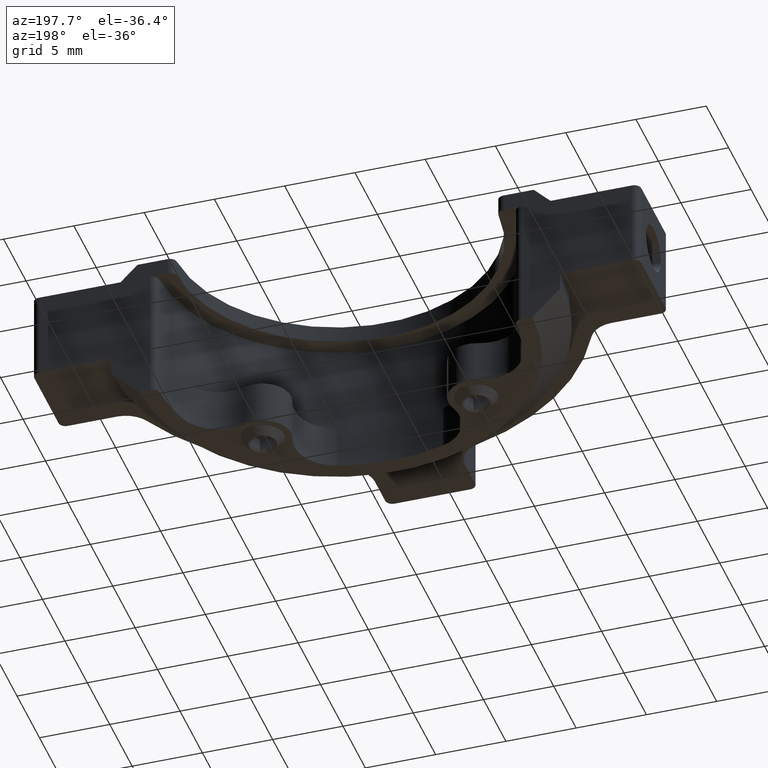
[diagram: clean part render]
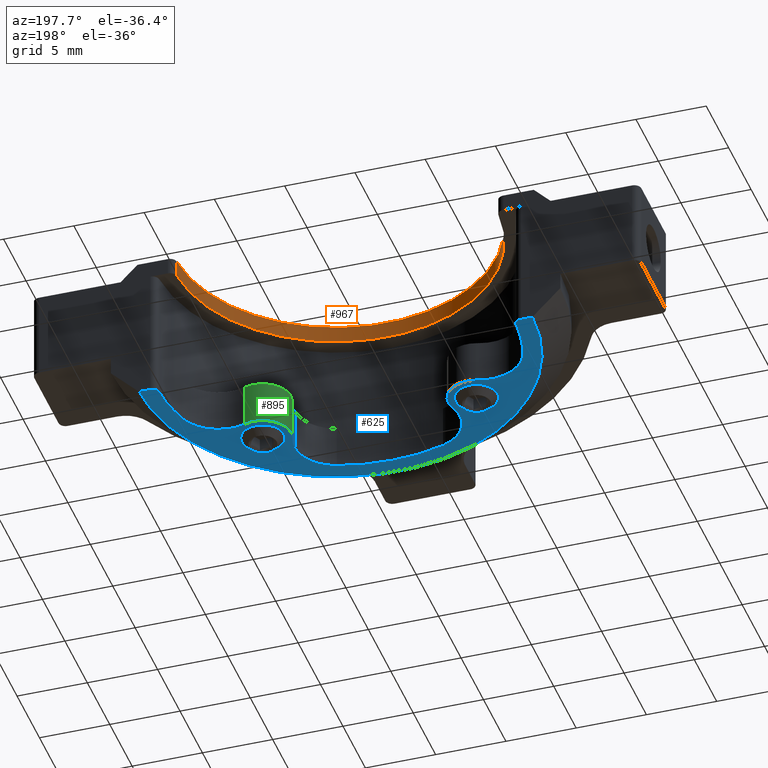
[diagram: same view with three faces highlighted in distinct colors, each labeled with its STEP entity id]
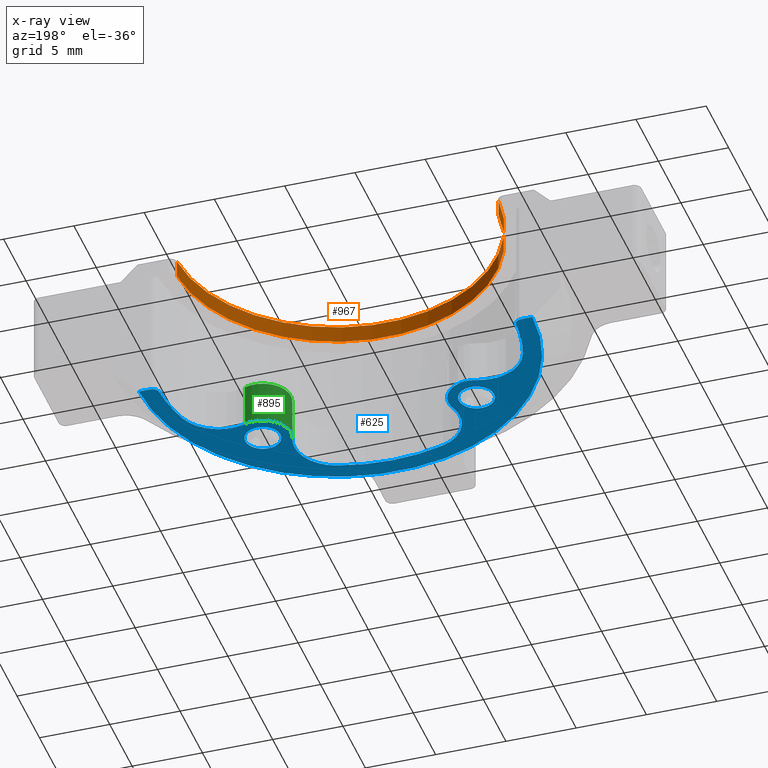
[diagram: x-ray of the same camera — body ghosted, the three highlighted faces saturated]
A machine part, auxiliary view with three faces highlighted in distinct colors.
The next image is the same camera in x-ray (body ghosted, the three faces saturated) — at least one of them is partly hidden behind the body in this view.
Their STEP definitions:

[orange] entity #967 — the highlighted cylindrical surface (partial cylindrical patch) has radius 11.45 mm, axis along (-0, -0, 1).
#158 = VERTEX_POINT ( 'NONE', #2310 ) ;
#218 = ORIENTED_EDGE ( 'NONE', *, *, #2672, .T. ) ;
#305 = DIRECTION ( 'NONE',  ( 1.000000000000000000, 0.000000000000000000, 0.000000000000000000 ) ) ;
#377 = VECTOR ( 'NONE', #2546, 1000.000000000000000 ) ;
#484 = DIRECTION ( 'NONE',  ( -0.000000000000000000, 0.000000000000000000, 1.000000000000000000 ) ) ;
#494 = DIRECTION ( 'NONE',  ( -0.000000000000000000, -0.000000000000000000, -1.000000000000000000 ) ) ;
#626 = VERTEX_POINT ( 'NONE', #1872 ) ;
#657 = DIRECTION ( 'NONE',  ( -0.000000000000000000, -0.000000000000000000, 1.000000000000000000 ) ) ;
#821 = EDGE_LOOP ( 'NONE', ( #889, #843, #2285, #218 ) ) ;
#822 = DIRECTION ( 'NONE',  ( 0.000000000000000000, 0.000000000000000000, -1.000000000000000000 ) ) ;
#828 = VERTEX_POINT ( 'NONE', #1001 ) ;
#843 = ORIENTED_EDGE ( 'NONE', *, *, #2188, .T. ) ;
#889 = ORIENTED_EDGE ( 'NONE', *, *, #2827, .T. ) ;
#906 = AXIS2_PLACEMENT_3D ( 'NONE', #3115, #494, #305 ) ;
#967 = ADVANCED_FACE ( 'NONE', ( #1366 ), #2820, .F. ) ;
#1001 = CARTESIAN_POINT ( 'NONE',  ( -13.35645273693320334, 8.509741874139219675, 34.55000000000000426 ) ) ;
#1010 = VECTOR ( 'NONE', #822, 1000.000000000000000 ) ;
#1165 = DIRECTION ( 'NONE',  ( 1.000000000000000000, 0.000000000000000000, 0.000000000000000000 ) ) ;
#1306 = LINE ( 'NONE', #2966, #1010 ) ;
#1366 = FACE_OUTER_BOUND ( 'NONE', #821, .T. ) ;
#1442 = CARTESIAN_POINT ( 'NONE',  ( -1.916479710973556516, 8.988821372047169689, 34.55000000000000426 ) ) ;
#1585 = CARTESIAN_POINT ( 'NONE',  ( -13.35645273693320334, 8.509741874139219675, 26.95000000000000284 ) ) ;
#1709 = CIRCLE ( 'NONE', #906, 11.45000000000000107 ) ;
#1807 = AXIS2_PLACEMENT_3D ( 'NONE', #1442, #484, #1165 ) ;
#1872 = CARTESIAN_POINT ( 'NONE',  ( -13.35645273693320334, 8.509741874139219675, 33.35000000000000142 ) ) ;
#1878 = DIRECTION ( 'NONE',  ( 1.000000000000000000, 0.000000000000000000, 0.000000000000000000 ) ) ;
#2042 = AXIS2_PLACEMENT_3D ( 'NONE', #2059, #657, #1878 ) ;
#2059 = CARTESIAN_POINT ( 'NONE',  ( -1.916479710973556516, 8.988821372047169689, 26.95000000000000284 ) ) ;
#2188 = EDGE_CURVE ( 'NONE', #158, #2664, #1306, .T. ) ;
#2285 = ORIENTED_EDGE ( 'NONE', *, *, #2287, .T. ) ;
#2287 = EDGE_CURVE ( 'NONE', #2664, #626, #1709, .T. ) ;
#2310 = CARTESIAN_POINT ( 'NONE',  ( 9.523493314986090752, 8.509741874139219675, 34.55000000000000426 ) ) ;
#2546 = DIRECTION ( 'NONE',  ( -0.000000000000000000, -0.000000000000000000, 1.000000000000000000 ) ) ;
#2664 = VERTEX_POINT ( 'NONE', #2835 ) ;
#2672 = EDGE_CURVE ( 'NONE', #626, #828, #2818, .T. ) ;
#2818 = LINE ( 'NONE', #1585, #377 ) ;
#2820 = CYLINDRICAL_SURFACE ( 'NONE', #2042, 11.45000000000000107 ) ;
#2822 = CIRCLE ( 'NONE', #1807, 11.45000000000000107 ) ;
#2827 = EDGE_CURVE ( 'NONE', #828, #158, #2822, .T. ) ;
#2835 = CARTESIAN_POINT ( 'NONE',  ( 9.523493314986090752, 8.509741874139219675, 33.35000000000000142 ) ) ;
#2966 = CARTESIAN_POINT ( 'NONE',  ( 9.523493314986090752, 8.509741874139219675, 26.95000000000000284 ) ) ;
#3115 = CARTESIAN_POINT ( 'NONE',  ( -1.916479710973556516, 8.988821372047169689, 33.35000000000000142 ) ) ;

[blue] entity #625 — the highlighted planar face has unit normal (-0, 0, 1).
#23 = DIRECTION ( 'NONE',  ( -0.000000000000000000, 0.000000000000000000, 1.000000000000000000 ) ) ;
#41 = CIRCLE ( 'NONE', #2853, 3.000000000000000444 ) ;
#43 = CIRCLE ( 'NONE', #245, 12.69999999999999929 ) ;
#50 = CARTESIAN_POINT ( 'NONE',  ( -9.517877608728953831, 1.387423474291795911, 23.85000000000000142 ) ) ;
#52 = CARTESIAN_POINT ( 'NONE',  ( -11.17755057159709864, 6.103935496573145159, 23.85000000000000142 ) ) ;
#57 = CARTESIAN_POINT ( 'NONE',  ( 0.9684061645004985452, -0.2722494885763647177, 23.85000000000000142 ) ) ;
#58 = EDGE_CURVE ( 'NONE', #2474, #592, #931, .T. ) ;
#119 = DIRECTION ( 'NONE',  ( -1.000000000000000000, 0.000000000000000000, 0.000000000000000000 ) ) ;
#135 = EDGE_CURVE ( 'NONE', #522, #2623, #1588, .T. ) ;
#147 = AXIS2_PLACEMENT_3D ( 'NONE', #1395, #3076, #2323 ) ;
#154 = CARTESIAN_POINT ( 'NONE',  ( 11.27404719283129175, 8.988821372047167912, 23.85000000000000142 ) ) ;
#166 = CIRCLE ( 'NONE', #379, 3.000000000000000888 ) ;
#199 = DIRECTION ( 'NONE',  ( 0.000000000000000000, -0.000000000000000000, -1.000000000000000000 ) ) ;
#214 = DIRECTION ( 'NONE',  ( 1.000000000000000000, 0.000000000000000000, 0.000000000000000000 ) ) ;
#227 = DIRECTION ( 'NONE',  ( -1.000000000000000000, 0.000000000000000000, 0.000000000000000000 ) ) ;
#245 = AXIS2_PLACEMENT_3D ( 'NONE', #2785, #199, #1601 ) ;
#250 = DIRECTION ( 'NONE',  ( 1.000000000000000000, 0.000000000000000000, 0.000000000000000000 ) ) ;
#280 = ORIENTED_EDGE ( 'NONE', *, *, #2878, .F. ) ;
#287 = ORIENTED_EDGE ( 'NONE', *, *, #3118, .T. ) ;
#315 = ORIENTED_EDGE ( 'NONE', *, *, #1928, .F. ) ;
#341 = DIRECTION ( 'NONE',  ( 1.000000000000000000, 0.000000000000000000, 0.000000000000000000 ) ) ;
#379 = AXIS2_PLACEMENT_3D ( 'NONE', #52, #780, #2986 ) ;
#384 = CARTESIAN_POINT ( 'NONE',  ( 3.798313377869302787, 0.7235542891445320146, 23.85000000000000142 ) ) ;
#396 = CARTESIAN_POINT ( 'NONE',  ( -23.51647971097355949, 8.988821372047167912, 23.85000000000000142 ) ) ;
#405 = CARTESIAN_POINT ( 'NONE',  ( -15.10700661477842210, 8.488821372047167912, 23.85000000000000142 ) ) ;
#421 = CIRCLE ( 'NONE', #665, 0.5000000000000004441 ) ;
#425 = AXIS2_PLACEMENT_3D ( 'NONE', #2681, #2192, #1429 ) ;
#429 = DIRECTION ( 'NONE',  ( 0.000000000000000000, -0.000000000000000000, -1.000000000000000000 ) ) ;
#473 = CIRCLE ( 'NONE', #1163, 12.69999999999999929 ) ;
#491 = EDGE_CURVE ( 'NONE', #2316, #1206, #2962, .T. ) ;
#498 = AXIS2_PLACEMENT_3D ( 'NONE', #1608, #2597, #917 ) ;
#501 = DIRECTION ( 'NONE',  ( 1.000000000000000000, 0.000000000000000000, 0.000000000000000000 ) ) ;
#522 = VERTEX_POINT ( 'NONE', #1287 ) ;
#565 = DIRECTION ( 'NONE',  ( -1.000000000000000000, -0.000000000000000000, -0.000000000000000000 ) ) ;
#573 = CIRCLE ( 'NONE', #770, 1.249999999999989786 ) ;
#583 = EDGE_CURVE ( 'NONE', #1400, #2729, #1141, .T. ) ;
#592 = VERTEX_POINT ( 'NONE', #154 ) ;
#625 = ADVANCED_FACE ( 'NONE', ( #1592, #661, #644 ), #2110, .F. ) ;
#628 = CARTESIAN_POINT ( 'NONE',  ( -10.18174679387621140, 3.274028283204335477, 23.85000000000000142 ) ) ;
#644 = FACE_OUTER_BOUND ( 'NONE', #1529, .T. ) ;
#661 = FACE_BOUND ( 'NONE', #2600, .T. ) ;
#665 = AXIS2_PLACEMENT_3D ( 'NONE', #405, #1344, #1566 ) ;
#680 = VERTEX_POINT ( 'NONE', #2578 ) ;
#712 = VECTOR ( 'NONE', #1120, 1000.000000000000000 ) ;
#728 = EDGE_CURVE ( 'NONE', #1792, #1294, #2447, .T. ) ;
#733 = ORIENTED_EDGE ( 'NONE', *, *, #583, .F. ) ;
#742 = CIRCLE ( 'NONE', #1536, 1.249999999999988898 ) ;
#770 = AXIS2_PLACEMENT_3D ( 'NONE', #1492, #1509, #119 ) ;
#775 = ORIENTED_EDGE ( 'NONE', *, *, #778, .T. ) ;
#778 = EDGE_CURVE ( 'NONE', #1698, #1066, #41, .T. ) ;
#780 = DIRECTION ( 'NONE',  ( -0.000000000000000000, 0.000000000000000000, 1.000000000000000000 ) ) ;
#785 = CARTESIAN_POINT ( 'NONE',  ( -4.801365586447608358, -0.2722494885763655503, 23.85000000000000142 ) ) ;
#829 = EDGE_CURVE ( 'NONE', #1792, #1400, #2643, .T. ) ;
#838 = VERTEX_POINT ( 'NONE', #1929 ) ;
#917 = DIRECTION ( 'NONE',  ( 1.000000000000000000, 0.000000000000000000, 0.000000000000000000 ) ) ;
#923 = ORIENTED_EDGE ( 'NONE', *, *, #1276, .T. ) ;
#931 = CIRCLE ( 'NONE', #147, 0.5000000000000004441 ) ;
#946 = ORIENTED_EDGE ( 'NONE', *, *, #1356, .T. ) ;
#964 = ORIENTED_EDGE ( 'NONE', *, *, #1274, .F. ) ;
#980 = ORIENTED_EDGE ( 'NONE', *, *, #2964, .T. ) ;
#1028 = LINE ( 'NONE', #1292, #1391 ) ;
#1039 = EDGE_CURVE ( 'NONE', #1820, #2854, #1052, .T. ) ;
#1052 = CIRCLE ( 'NONE', #1790, 12.69999999999999929 ) ;
#1066 = VERTEX_POINT ( 'NONE', #1397 ) ;
#1110 = CARTESIAN_POINT ( 'NONE',  ( 1.860638909492473125, -3.136498208356836237, 23.85000000000000142 ) ) ;
#1120 = DIRECTION ( 'NONE',  ( -1.000000000000000000, -0.000000000000000000, -0.000000000000000000 ) ) ;
#1141 = CIRCLE ( 'NONE', #1432, 2.000000000000001776 ) ;
#1155 = CARTESIAN_POINT ( 'NONE',  ( -14.04179929137757554, 5.211702751581181126, 23.85000000000000142 ) ) ;
#1157 = ORIENTED_EDGE ( 'NONE', *, *, #3024, .F. ) ;
#1161 = ORIENTED_EDGE ( 'NONE', *, *, #58, .T. ) ;
#1163 = AXIS2_PLACEMENT_3D ( 'NONE', #2385, #2130, #501 ) ;
#1167 = VERTEX_POINT ( 'NONE', #2605 ) ;
#1204 = CARTESIAN_POINT ( 'NONE',  ( 10.20883986943046295, 5.211702751581182902, 23.85000000000000142 ) ) ;
#1206 = VERTEX_POINT ( 'NONE', #1246 ) ;
#1222 = CARTESIAN_POINT ( 'NONE',  ( -7.517877608728952055, 1.387423474291795911, 23.85000000000000142 ) ) ;
#1225 = DIRECTION ( 'NONE',  ( -0.000000000000000000, -0.000000000000000000, -1.000000000000000000 ) ) ;
#1246 = CARTESIAN_POINT ( 'NONE',  ( 4.434918186781851901, 1.387423474291797687, 23.85000000000000142 ) ) ;
#1258 = CARTESIAN_POINT ( 'NONE',  ( -9.517877608728953831, 1.387423474291795911, 23.85000000000000142 ) ) ;
#1274 = EDGE_CURVE ( 'NONE', #2480, #592, #1028, .T. ) ;
#1276 = EDGE_CURVE ( 'NONE', #1066, #2623, #2649, .T. ) ;
#1287 = CARTESIAN_POINT ( 'NONE',  ( 6.348787371929100587, 3.274028283204339029, 23.85000000000000142 ) ) ;
#1292 = CARTESIAN_POINT ( 'NONE',  ( -23.51647971097355949, 8.988821372047167912, 23.85000000000000142 ) ) ;
#1294 = VERTEX_POINT ( 'NONE', #2097 ) ;
#1313 = CIRCLE ( 'NONE', #2718, 1.249999999999988898 ) ;
#1344 = DIRECTION ( 'NONE',  ( 0.000000000000000000, -0.000000000000000000, -1.000000000000000000 ) ) ;
#1356 = EDGE_CURVE ( 'NONE', #522, #1382, #2849, .T. ) ;
#1368 = ORIENTED_EDGE ( 'NONE', *, *, #728, .T. ) ;
#1380 = CARTESIAN_POINT ( 'NONE',  ( -1.916479710973556516, 8.988821372047167912, 23.85000000000000142 ) ) ;
#1382 = VERTEX_POINT ( 'NONE', #1204 ) ;
#1390 = CARTESIAN_POINT ( 'NONE',  ( 7.344591149649987827, 6.103935496573146935, 23.85000000000000142 ) ) ;
#1391 = VECTOR ( 'NONE', #565, 1000.000000000000000 ) ;
#1395 = CARTESIAN_POINT ( 'NONE',  ( 11.27404719283130952, 8.488821372047167912, 23.85000000000000142 ) ) ;
#1397 = CARTESIAN_POINT ( 'NONE',  ( 3.968406164500498878, -0.2722494885763647177, 23.85000000000000142 ) ) ;
#1400 = VERTEX_POINT ( 'NONE', #1222 ) ;
#1408 = DIRECTION ( 'NONE',  ( -0.000000000000000000, -0.000000000000000000, -1.000000000000000000 ) ) ;
#1416 = ORIENTED_EDGE ( 'NONE', *, *, #135, .F. ) ;
#1429 = DIRECTION ( 'NONE',  ( 1.000000000000000000, 0.000000000000000000, 0.000000000000000000 ) ) ;
#1432 = AXIS2_PLACEMENT_3D ( 'NONE', #1258, #2686, #341 ) ;
#1489 = AXIS2_PLACEMENT_3D ( 'NONE', #1649, #1894, #214 ) ;
#1492 = CARTESIAN_POINT ( 'NONE',  ( 5.684918186781841243, 1.387423474291797687, 23.85000000000000142 ) ) ;
#1509 = DIRECTION ( 'NONE',  ( -0.000000000000000000, -0.000000000000000000, -1.000000000000000000 ) ) ;
#1511 = DIRECTION ( 'NONE',  ( -0.000000000000000000, 0.000000000000000000, 1.000000000000000000 ) ) ;
#1521 = DIRECTION ( 'NONE',  ( -0.000000000000000000, -0.000000000000000000, -1.000000000000000000 ) ) ;
#1529 = EDGE_LOOP ( 'NONE', ( #315, #1161, #964, #287, #2781, #1667, #3096, #980, #733, #2022, #1368, #280, #775, #923, #1416, #946 ) ) ;
#1536 = AXIS2_PLACEMENT_3D ( 'NONE', #2698, #1521, #2477 ) ;
#1566 = DIRECTION ( 'NONE',  ( 1.000000000000000000, 0.000000000000000000, 0.000000000000000000 ) ) ;
#1588 = CIRCLE ( 'NONE', #1489, 2.000000000000002665 ) ;
#1592 = FACE_BOUND ( 'NONE', #2205, .T. ) ;
#1601 = DIRECTION ( 'NONE',  ( 1.000000000000000000, 0.000000000000000000, 0.000000000000000000 ) ) ;
#1602 = LINE ( 'NONE', #396, #712 ) ;
#1607 = CARTESIAN_POINT ( 'NONE',  ( 12.08352028902641706, 8.988821372047167912, 23.85000000000000142 ) ) ;
#1608 = CARTESIAN_POINT ( 'NONE',  ( -1.916479710973556516, -1.811178627952831688, 23.85000000000000142 ) ) ;
#1611 = EDGE_CURVE ( 'NONE', #680, #838, #742, .T. ) ;
#1640 = AXIS2_PLACEMENT_3D ( 'NONE', #2601, #1408, #227 ) ;
#1649 = CARTESIAN_POINT ( 'NONE',  ( 5.684918186781841243, 1.387423474291797687, 23.85000000000000142 ) ) ;
#1667 = ORIENTED_EDGE ( 'NONE', *, *, #2208, .T. ) ;
#1673 = DIRECTION ( 'NONE',  ( -0.000000000000000000, 0.000000000000000000, 1.000000000000000000 ) ) ;
#1687 = CARTESIAN_POINT ( 'NONE',  ( -15.10700661477842566, 8.988821372047167912, 23.85000000000000142 ) ) ;
#1698 = VERTEX_POINT ( 'NONE', #1110 ) ;
#1733 = DIRECTION ( 'NONE',  ( -0.000000000000000000, 0.000000000000000000, 1.000000000000000000 ) ) ;
#1761 = CIRCLE ( 'NONE', #425, 13.99999999999998401 ) ;
#1790 = AXIS2_PLACEMENT_3D ( 'NONE', #1380, #429, #1867 ) ;
#1792 = VERTEX_POINT ( 'NONE', #2139 ) ;
#1820 = VERTEX_POINT ( 'NONE', #1155 ) ;
#1840 = AXIS2_PLACEMENT_3D ( 'NONE', #2969, #1511, #2736 ) ;
#1867 = DIRECTION ( 'NONE',  ( 1.000000000000000000, 0.000000000000000000, 0.000000000000000000 ) ) ;
#1894 = DIRECTION ( 'NONE',  ( -0.000000000000000000, 0.000000000000000000, 1.000000000000000000 ) ) ;
#1928 = EDGE_CURVE ( 'NONE', #2474, #1382, #43, .T. ) ;
#1929 = CARTESIAN_POINT ( 'NONE',  ( -10.76787760872894317, 1.387423474291795911, 23.85000000000000142 ) ) ;
#1949 = DIRECTION ( 'NONE',  ( -0.000000000000000000, 0.000000000000000000, 1.000000000000000000 ) ) ;
#1998 = AXIS2_PLACEMENT_3D ( 'NONE', #2392, #1949, #250 ) ;
#2022 = ORIENTED_EDGE ( 'NONE', *, *, #829, .F. ) ;
#2091 = ORIENTED_EDGE ( 'NONE', *, *, #2100, .F. ) ;
#2097 = CARTESIAN_POINT ( 'NONE',  ( -5.693598331439583049, -3.136498208356838013, 23.85000000000000142 ) ) ;
#2100 = EDGE_CURVE ( 'NONE', #838, #680, #1313, .T. ) ;
#2110 = PLANE ( 'NONE',  #498 ) ;
#2130 = DIRECTION ( 'NONE',  ( 0.000000000000000000, -0.000000000000000000, -1.000000000000000000 ) ) ;
#2139 = CARTESIAN_POINT ( 'NONE',  ( -7.631272799816414043, 0.7235542891445315705, 23.85000000000000142 ) ) ;
#2177 = DIRECTION ( 'NONE',  ( 1.000000000000000000, 0.000000000000000000, 0.000000000000000000 ) ) ;
#2179 = DIRECTION ( 'NONE',  ( -1.000000000000000000, 0.000000000000000000, 0.000000000000000000 ) ) ;
#2192 = DIRECTION ( 'NONE',  ( 0.000000000000000000, -0.000000000000000000, -1.000000000000000000 ) ) ;
#2205 = EDGE_LOOP ( 'NONE', ( #1157, #2319 ) ) ;
#2208 = EDGE_CURVE ( 'NONE', #2373, #2854, #421, .T. ) ;
#2316 = VERTEX_POINT ( 'NONE', #2445 ) ;
#2317 = CARTESIAN_POINT ( 'NONE',  ( 10.77440602223263966, 8.507760765986562390, 23.85000000000000142 ) ) ;
#2319 = ORIENTED_EDGE ( 'NONE', *, *, #491, .F. ) ;
#2323 = DIRECTION ( 'NONE',  ( 1.000000000000000000, 0.000000000000000000, 0.000000000000000000 ) ) ;
#2373 = VERTEX_POINT ( 'NONE', #1687 ) ;
#2385 = CARTESIAN_POINT ( 'NONE',  ( -1.916479710973556516, 8.988821372047167912, 23.85000000000000142 ) ) ;
#2392 = CARTESIAN_POINT ( 'NONE',  ( -9.517877608728953831, 1.387423474291795911, 23.85000000000000142 ) ) ;
#2445 = CARTESIAN_POINT ( 'NONE',  ( 6.934918186781831473, 1.387423474291797909, 23.85000000000000142 ) ) ;
#2447 = CIRCLE ( 'NONE', #2699, 3.000000000000000000 ) ;
#2474 = VERTEX_POINT ( 'NONE', #2317 ) ;
#2477 = DIRECTION ( 'NONE',  ( -1.000000000000000000, 0.000000000000000000, 0.000000000000000000 ) ) ;
#2480 = VERTEX_POINT ( 'NONE', #1607 ) ;
#2578 = CARTESIAN_POINT ( 'NONE',  ( -8.267877608728964489, 1.387423474291796133, 23.85000000000000142 ) ) ;
#2597 = DIRECTION ( 'NONE',  ( -0.000000000000000000, 0.000000000000000000, 1.000000000000000000 ) ) ;
#2600 = EDGE_LOOP ( 'NONE', ( #2091, #2823 ) ) ;
#2601 = CARTESIAN_POINT ( 'NONE',  ( 5.684918186781841243, 1.387423474291797687, 23.85000000000000142 ) ) ;
#2605 = CARTESIAN_POINT ( 'NONE',  ( -15.91647971097354031, 8.988821372047167912, 23.85000000000000142 ) ) ;
#2621 = CARTESIAN_POINT ( 'NONE',  ( -14.60736544417975225, 8.507760765986562390, 23.85000000000000142 ) ) ;
#2623 = VERTEX_POINT ( 'NONE', #384 ) ;
#2643 = CIRCLE ( 'NONE', #1998, 2.000000000000001776 ) ;
#2649 = CIRCLE ( 'NONE', #1840, 3.000000000000000444 ) ;
#2679 = DIRECTION ( 'NONE',  ( 1.000000000000000000, 0.000000000000000000, 0.000000000000000000 ) ) ;
#2681 = CARTESIAN_POINT ( 'NONE',  ( -1.916479710973556516, 8.988821372047169689, 23.85000000000000142 ) ) ;
#2686 = DIRECTION ( 'NONE',  ( -0.000000000000000000, 0.000000000000000000, 1.000000000000000000 ) ) ;
#2698 = CARTESIAN_POINT ( 'NONE',  ( -9.517877608728953831, 1.387423474291795911, 23.85000000000000142 ) ) ;
#2699 = AXIS2_PLACEMENT_3D ( 'NONE', #785, #1733, #2679 ) ;
#2718 = AXIS2_PLACEMENT_3D ( 'NONE', #50, #1225, #2179 ) ;
#2729 = VERTEX_POINT ( 'NONE', #628 ) ;
#2736 = DIRECTION ( 'NONE',  ( 1.000000000000000000, 0.000000000000000000, 0.000000000000000000 ) ) ;
#2746 = EDGE_CURVE ( 'NONE', #2373, #1167, #1602, .T. ) ;
#2781 = ORIENTED_EDGE ( 'NONE', *, *, #2746, .F. ) ;
#2785 = CARTESIAN_POINT ( 'NONE',  ( -1.916479710973556516, 8.988821372047167912, 23.85000000000000142 ) ) ;
#2823 = ORIENTED_EDGE ( 'NONE', *, *, #1611, .F. ) ;
#2849 = CIRCLE ( 'NONE', #3101, 2.999999999999999112 ) ;
#2853 = AXIS2_PLACEMENT_3D ( 'NONE', #57, #23, #2887 ) ;
#2854 = VERTEX_POINT ( 'NONE', #2621 ) ;
#2878 = EDGE_CURVE ( 'NONE', #1698, #1294, #473, .T. ) ;
#2887 = DIRECTION ( 'NONE',  ( 1.000000000000000000, 0.000000000000000000, 0.000000000000000000 ) ) ;
#2962 = CIRCLE ( 'NONE', #1640, 1.249999999999989786 ) ;
#2964 = EDGE_CURVE ( 'NONE', #1820, #2729, #166, .T. ) ;
#2969 = CARTESIAN_POINT ( 'NONE',  ( 0.9684061645004985452, -0.2722494885763647177, 23.85000000000000142 ) ) ;
#2986 = DIRECTION ( 'NONE',  ( 1.000000000000000000, 0.000000000000000000, 0.000000000000000000 ) ) ;
#3024 = EDGE_CURVE ( 'NONE', #1206, #2316, #573, .T. ) ;
#3076 = DIRECTION ( 'NONE',  ( 0.000000000000000000, -0.000000000000000000, -1.000000000000000000 ) ) ;
#3096 = ORIENTED_EDGE ( 'NONE', *, *, #1039, .F. ) ;
#3101 = AXIS2_PLACEMENT_3D ( 'NONE', #1390, #1673, #2177 ) ;
#3118 = EDGE_CURVE ( 'NONE', #2480, #1167, #1761, .T. ) ;

[green] entity #895 — the highlighted cylindrical surface (edge-blend (fillet) strip) has radius 2 mm, axis along (-0, -0, 1).
#17 = DIRECTION ( 'NONE',  ( -0.000000000000000000, -0.000000000000000000, -1.000000000000000000 ) ) ;
#70 = DIRECTION ( 'NONE',  ( -1.000000000000000000, 0.000000000000000000, 0.000000000000000000 ) ) ;
#135 = EDGE_CURVE ( 'NONE', #522, #2623, #1588, .T. ) ;
#190 = AXIS2_PLACEMENT_3D ( 'NONE', #743, #17, #70 ) ;
#197 = EDGE_CURVE ( 'NONE', #2623, #2733, #1212, .T. ) ;
#209 = EDGE_CURVE ( 'NONE', #2733, #900, #3055, .T. ) ;
#214 = DIRECTION ( 'NONE',  ( 1.000000000000000000, 0.000000000000000000, 0.000000000000000000 ) ) ;
#351 = ORIENTED_EDGE ( 'NONE', *, *, #209, .T. ) ;
#384 = CARTESIAN_POINT ( 'NONE',  ( 3.798313377869302787, 0.7235542891445320146, 23.85000000000000142 ) ) ;
#522 = VERTEX_POINT ( 'NONE', #1287 ) ;
#614 = DIRECTION ( 'NONE',  ( 1.000000000000000000, 0.000000000000000000, 0.000000000000000000 ) ) ;
#664 = ORIENTED_EDGE ( 'NONE', *, *, #197, .T. ) ;
#691 = LINE ( 'NONE', #2382, #1784 ) ;
#743 = CARTESIAN_POINT ( 'NONE',  ( 5.684918186781841243, 1.387423474291797687, 26.95000000000000284 ) ) ;
#895 = ADVANCED_FACE ( 'NONE', ( #2284 ), #3017, .T. ) ;
#900 = VERTEX_POINT ( 'NONE', #2956 ) ;
#1212 = LINE ( 'NONE', #1420, #2135 ) ;
#1251 = ORIENTED_EDGE ( 'NONE', *, *, #1448, .T. ) ;
#1287 = CARTESIAN_POINT ( 'NONE',  ( 6.348787371929100587, 3.274028283204339029, 23.85000000000000142 ) ) ;
#1298 = DIRECTION ( 'NONE',  ( -0.000000000000000000, -0.000000000000000000, 1.000000000000000000 ) ) ;
#1389 = AXIS2_PLACEMENT_3D ( 'NONE', #2740, #1298, #614 ) ;
#1406 = DIRECTION ( 'NONE',  ( 0.000000000000000000, 0.000000000000000000, -1.000000000000000000 ) ) ;
#1420 = CARTESIAN_POINT ( 'NONE',  ( 3.798313377869302787, 0.7235542891445320146, 23.84900000000000375 ) ) ;
#1448 = EDGE_CURVE ( 'NONE', #900, #522, #691, .T. ) ;
#1489 = AXIS2_PLACEMENT_3D ( 'NONE', #1649, #1894, #214 ) ;
#1555 = ORIENTED_EDGE ( 'NONE', *, *, #135, .T. ) ;
#1588 = CIRCLE ( 'NONE', #1489, 2.000000000000002665 ) ;
#1632 = CARTESIAN_POINT ( 'NONE',  ( 3.798313377869302787, 0.7235542891445320146, 26.95000000000000284 ) ) ;
#1649 = CARTESIAN_POINT ( 'NONE',  ( 5.684918186781841243, 1.387423474291797687, 23.85000000000000142 ) ) ;
#1784 = VECTOR ( 'NONE', #1406, 1000.000000000000000 ) ;
#1894 = DIRECTION ( 'NONE',  ( -0.000000000000000000, 0.000000000000000000, 1.000000000000000000 ) ) ;
#2135 = VECTOR ( 'NONE', #2403, 1000.000000000000000 ) ;
#2185 = EDGE_LOOP ( 'NONE', ( #1555, #664, #351, #1251 ) ) ;
#2284 = FACE_OUTER_BOUND ( 'NONE', #2185, .T. ) ;
#2382 = CARTESIAN_POINT ( 'NONE',  ( 6.348787371929100587, 3.274028283204339029, 23.84900000000000375 ) ) ;
#2403 = DIRECTION ( 'NONE',  ( -0.000000000000000000, -0.000000000000000000, 1.000000000000000000 ) ) ;
#2623 = VERTEX_POINT ( 'NONE', #384 ) ;
#2733 = VERTEX_POINT ( 'NONE', #1632 ) ;
#2740 = CARTESIAN_POINT ( 'NONE',  ( 5.684918186781841243, 1.387423474291797687, 23.84900000000000375 ) ) ;
#2956 = CARTESIAN_POINT ( 'NONE',  ( 6.348787371929100587, 3.274028283204339029, 26.95000000000000284 ) ) ;
#3017 = CYLINDRICAL_SURFACE ( 'NONE', #1389, 2.000000000000002665 ) ;
#3055 = CIRCLE ( 'NONE', #190, 2.000000000000002665 ) ;